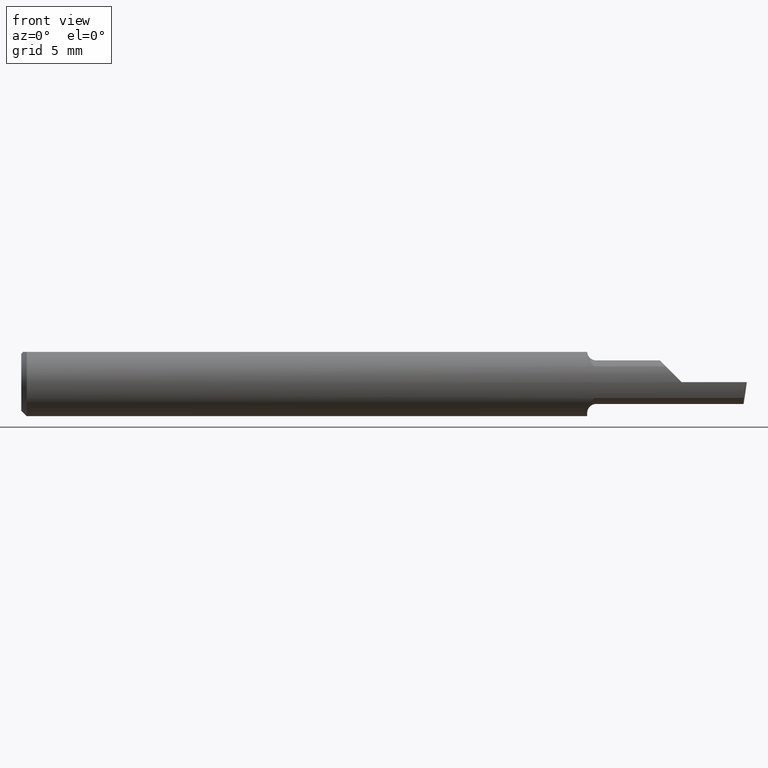
[diagram: clean part render]
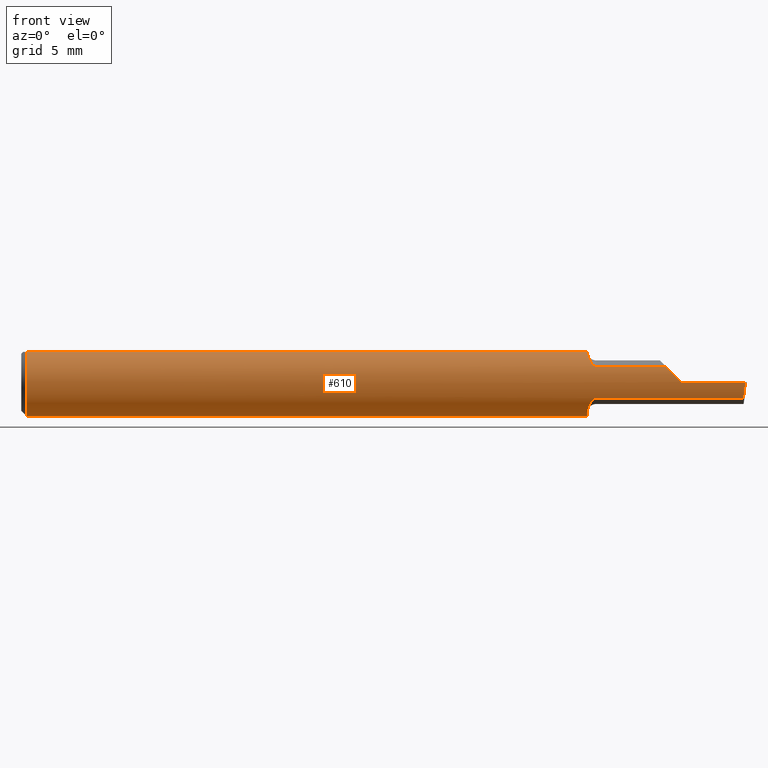
[diagram: same view with one face highlighted and labeled with its STEP entity id]
A machine part, front view. The second image highlights one B-rep face of the part: STEP entity #610.
In plain terms, the highlighted cylindrical surface (edge-blend (fillet) strip) has radius 2.3774 mm, axis along (-1, -0, -0).
Its self-contained STEP definition (entity closure, byte-faithful):
#16 = DIRECTION ( 'NONE',  ( 1.000000000000000000, 0.000000000000000000, 0.000000000000000000 ) ) ;
#21 = VERTEX_POINT ( 'NONE', #445 ) ;
#24 = VECTOR ( 'NONE', #315, 39.37007874015748143 ) ;
#26 = CARTESIAN_POINT ( 'NONE',  ( 1.560142013856806509, -0.04664149215143559984, -0.08134620001855791260 ) ) ;
#32 = CARTESIAN_POINT ( 'NONE',  ( 1.562377486072240140, -0.06025764937183669678, -0.07183713876074279692 ) ) ;
#38 = CARTESIAN_POINT ( 'NONE',  ( 1.563736053593592468, -0.06460630286910790110, 0.06793434242190561634 ) ) ;
#39 = CARTESIAN_POINT ( 'NONE',  ( 1.991291236644940232, -0.08283076923076923559, -0.04358926093247112582 ) ) ;
#43 = CARTESIAN_POINT ( 'NONE',  ( 1.563661553799954085, -0.06439886202495088974, -0.06813094799378993649 ) ) ;
#44 = CIRCLE ( 'NONE', #1172, 0.09360000000000001652 ) ;
#53 = CARTESIAN_POINT ( 'NONE',  ( 1.560039148586933377, -0.04209513035969836975, 0.08360000000000000764 ) ) ;
#54 = VERTEX_POINT ( 'NONE', #964 ) ;
#55 = CARTESIAN_POINT ( 'NONE',  ( 2.000000000000000000, 0.000000000000000000, 0.000000000000000000 ) ) ;
#58 = EDGE_CURVE ( 'NONE', #331, #84, #627, .T. ) ;
#70 = EDGE_CURVE ( 'NONE', #707, #532, #1121, .T. ) ;
#76 = CARTESIAN_POINT ( 'NONE',  ( 0.01499999999999997689, 0.000000000000000000, -0.09360000000000001652 ) ) ;
#83 = CARTESIAN_POINT ( 'NONE',  ( 2.000000000000000000, -0.04209513035969836975, 0.08360000000000000764 ) ) ;
#84 = VERTEX_POINT ( 'NONE', #952 ) ;
#87 = EDGE_CURVE ( 'NONE', #84, #797, #629, .T. ) ;
#89 = ORIENTED_EDGE ( 'NONE', *, *, #642, .T. ) ;
#90 = CARTESIAN_POINT ( 'NONE',  ( 1.560000000000000053, -0.03926105769230769926, -0.08496781360539583383 ) ) ;
#98 = CARTESIAN_POINT ( 'NONE',  ( 1.702500000000000124, -0.08283076923076923559, -0.04358926093247113970 ) ) ;
#111 = VECTOR ( 'NONE', #904, 39.37007874015748143 ) ;
#114 = ORIENTED_EDGE ( 'NONE', *, *, #87, .T. ) ;
#117 = CARTESIAN_POINT ( 'NONE',  ( 1.820000000000000062, -0.09359807690332104524, 0.0005999999999997234759 ) ) ;
#127 = CARTESIAN_POINT ( 'NONE',  ( 1.567102498006617939, -0.07167697195384635511, -0.06042723885938106054 ) ) ;
#139 = CIRCLE ( 'NONE', #884, 0.09360000000000001652 ) ;
#171 = DIRECTION ( 'NONE',  ( -1.000000000000000000, -0.000000000000000000, -0.000000000000000000 ) ) ;
#173 = AXIS2_PLACEMENT_3D ( 'NONE', #204, #469, #645 ) ;
#196 = CARTESIAN_POINT ( 'NONE',  ( 1.777010739067528267, -0.08283076923076923559, 0.04358926093247115358 ) ) ;
#204 = CARTESIAN_POINT ( 'NONE',  ( 0.01499999999999997689, 0.000000000000000000, 0.000000000000000000 ) ) ;
#209 = CARTESIAN_POINT ( 'NONE',  ( 1.567214892725881770, -0.07186207663014752833, 0.06020706929517852246 ) ) ;
#220 = CARTESIAN_POINT ( 'NONE',  ( 1.582125449801165873, -0.08283076923076916620, -0.04358926093247128541 ) ) ;
#222 = DIRECTION ( 'NONE',  ( 0.000000000000000000, 0.000000000000000000, -1.000000000000000000 ) ) ;
#225 = CARTESIAN_POINT ( 'NONE',  ( 1.582150197656746249, -0.08283076923076920783, 0.04358926093247113970 ) ) ;
#227 = AXIS2_PLACEMENT_3D ( 'NONE', #871, #395, #222 ) ;
#229 = DIRECTION ( 'NONE',  ( 0.000000000000000000, 0.000000000000000000, -1.000000000000000000 ) ) ;
#236 = ORIENTED_EDGE ( 'NONE', *, *, #864, .T. ) ;
#254 = VECTOR ( 'NONE', #16, 39.37007874015748143 ) ;
#261 = CIRCLE ( 'NONE', #227, 0.09360000000000001652 ) ;
#275 =( BOUNDED_CURVE ( )  B_SPLINE_CURVE ( 3, ( #39, #947, #290, #954 ),
 .UNSPECIFIED., .F., .T. ) 
 B_SPLINE_CURVE_WITH_KNOTS ( ( 4, 4 ),
 ( 0.8747232269835559793, 1.359145557743775212 ),
 .UNSPECIFIED. ) 
 CURVE ( )  GEOMETRIC_REPRESENTATION_ITEM ( )  RATIONAL_B_SPLINE_CURVE ( ( 1.000000000000000000, 0.9805400006031641524, 0.9805400006031641524, 1.000000000000000000 ) ) 
 REPRESENTATION_ITEM ( '' )  );
#281 = DIRECTION ( 'NONE',  ( 1.000000000000000000, 0.000000000000000000, 0.000000000000000000 ) ) ;
#284 = VERTEX_POINT ( 'NONE', #76 ) ;
#288 = LINE ( 'NONE', #98, #111 ) ;
#290 = CARTESIAN_POINT ( 'NONE',  ( 1.994485063052651386, -0.09359999999999997489, -0.01526366036866348523 ) ) ;
#295 = CARTESIAN_POINT ( 'NONE',  ( 1.560000000000000053, -0.04004803488789287352, -0.08460417523732044476 ) ) ;
#296 = CARTESIAN_POINT ( 'NONE',  ( 1.584999999999999964, -0.08283076923076923559, 0.04358926093247113970 ) ) ;
#297 = EDGE_LOOP ( 'NONE', ( #900, #831, #776, #536, #89, #523, #986, #236, #739, #1159, #1062, #1043, #992, #114 ) ) ;
#302 = CARTESIAN_POINT ( 'NONE',  ( 1.562477289815177306, -0.06060982146914534879, 0.07153573124103555780 ) ) ;
#303 = CARTESIAN_POINT ( 'NONE',  ( 1.804942563038452352, -0.09350155288834309519, 0.01565743696154713732 ) ) ;
#310 = CARTESIAN_POINT ( 'NONE',  ( 1.575391857495286985, -0.08017266721273609564, -0.04834262406831377201 ) ) ;
#315 = DIRECTION ( 'NONE',  ( -1.000000000000000000, -0.000000000000000000, -0.000000000000000000 ) ) ;
#322 = CYLINDRICAL_SURFACE ( 'NONE', #915, 0.09360000000000001652 ) ;
#331 = VERTEX_POINT ( 'NONE', #90 ) ;
#332 = LINE ( 'NONE', #83, #974 ) ;
#364 = CIRCLE ( 'NONE', #173, 0.09360000000000001652 ) ;
#369 = CARTESIAN_POINT ( 'NONE',  ( 1.560008895707774235, -0.04082764346252551468, -0.08423067673484113671 ) ) ;
#376 = CARTESIAN_POINT ( 'NONE',  ( 1.569245964766196932, -0.07491303877601933336, -0.05632320250699807823 ) ) ;
#377 = CARTESIAN_POINT ( 'NONE',  ( 1.790336003083979000, -0.08984312002264578656, 0.03026399691602062181 ) ) ;
#389 = CARTESIAN_POINT ( 'NONE',  ( 1.560039148586933377, -0.04209513035969836975, 0.08360000000000000764 ) ) ;
#395 = DIRECTION ( 'NONE',  ( 1.000000000000000000, -0.000000000000000000, -0.000000000000000000 ) ) ;
#409 = FACE_OUTER_BOUND ( 'NONE', #297, .T. ) ;
#418 = EDGE_CURVE ( 'NONE', #555, #284, #364, .T. ) ;
#427 =( BOUNDED_CURVE ( )  B_SPLINE_CURVE ( 3, ( #507, #303, #377, #650 ),
 .UNSPECIFIED., .F., .F. ) 
 B_SPLINE_CURVE_WITH_KNOTS ( ( 4, 4 ),
 ( 4.718799280696809539, 5.196811311144909240 ),
 .UNSPECIFIED. ) 
 CURVE ( )  GEOMETRIC_REPRESENTATION_ITEM ( )  RATIONAL_B_SPLINE_CURVE ( ( 1.000000000000000000, 0.9810491785075265980, 0.9810491785075265980, 1.000000000000000000 ) ) 
 REPRESENTATION_ITEM ( '' )  );
#435 = VECTOR ( 'NONE', #1083, 39.37007874015748143 ) ;
#445 = CARTESIAN_POINT ( 'NONE',  ( 1.996359204888788375, -0.09360000000000003040, -1.280553747030123384E-17 ) ) ;
#469 = DIRECTION ( 'NONE',  ( 1.000000000000000000, -0.000000000000000000, -0.000000000000000000 ) ) ;
#472 = CARTESIAN_POINT ( 'NONE',  ( 1.560026580150250863, -0.04160000000000011605, -0.08384748058230487300 ) ) ;
#498 = VERTEX_POINT ( 'NONE', #117 ) ;
#507 = CARTESIAN_POINT ( 'NONE',  ( 1.820000000000000062, -0.09359807690332104524, 0.0005999999999997234759 ) ) ;
#511 = LINE ( 'NONE', #887, #435 ) ;
#523 = ORIENTED_EDGE ( 'NONE', *, *, #934, .F. ) ;
#532 = VERTEX_POINT ( 'NONE', #389 ) ;
#536 = ORIENTED_EDGE ( 'NONE', *, *, #549, .F. ) ;
#549 = EDGE_CURVE ( 'NONE', #498, #643, #139, .T. ) ;
#555 = VERTEX_POINT ( 'NONE', #877 ) ;
#556 = DIRECTION ( 'NONE',  ( 0.000000000000000000, 0.000000000000000000, -1.000000000000000000 ) ) ;
#572 = CARTESIAN_POINT ( 'NONE',  ( 1.584999999999999964, -0.08283076923076923559, -0.04358926093247113970 ) ) ;
#579 = CARTESIAN_POINT ( 'NONE',  ( 1.560178547211975353, -0.04709507836289907740, 0.08108237484465974365 ) ) ;
#590 = DIRECTION ( 'NONE',  ( -1.000000000000000000, -0.000000000000000000, -0.000000000000000000 ) ) ;
#593 = CARTESIAN_POINT ( 'NONE',  ( 1.575459910688778997, -0.08021373321158492553, 0.04827370452423246361 ) ) ;
#608 = EDGE_CURVE ( 'NONE', #284, #659, #261, .T. ) ;
#610 = ADVANCED_FACE ( 'NONE', ( #409 ), #322, .T. ) ;
#622 = EDGE_CURVE ( 'NONE', #21, #643, #1140, .T. ) ;
#627 = B_SPLINE_CURVE_WITH_KNOTS ( 'NONE', 3,
 ( #839, #295, #369, #472 ),
 .UNSPECIFIED., .F., .F.,
 ( 4, 4 ),
 ( 0.000000000000000000, 6.511945750756365111E-05 ),
 .UNSPECIFIED. ) ;
#629 = B_SPLINE_CURVE_WITH_KNOTS ( 'NONE', 3,
 ( #1033, #26, #1130, #32, #43, #127, #376, #656, #310, #752, #220, #572 ),
 .UNSPECIFIED., .F., .F.,
 ( 4, 2, 2, 2, 2, 4 ),
 ( 6.511945750756365111E-05, 0.0004901812236745791990, 0.0009152429898415950045, 0.001340304756008611027, 0.001552835639092118658, 0.001765366522175626507 ),
 .UNSPECIFIED. ) ;
#642 = EDGE_CURVE ( 'NONE', #498, #744, #427, .T. ) ;
#643 = VERTEX_POINT ( 'NONE', #929 ) ;
#645 = DIRECTION ( 'NONE',  ( 0.000000000000000000, 0.000000000000000000, -1.000000000000000000 ) ) ;
#650 = CARTESIAN_POINT ( 'NONE',  ( 1.777010739067528267, -0.08283076923076923559, 0.04358926093247115358 ) ) ;
#656 = CARTESIAN_POINT ( 'NONE',  ( 1.573701538880792228, -0.07896087784546762522, -0.05031864862752456063 ) ) ;
#659 = VERTEX_POINT ( 'NONE', #760 ) ;
#663 = LINE ( 'NONE', #726, #254 ) ;
#666 = CARTESIAN_POINT ( 'NONE',  ( 1.991291236644940232, -0.08283076923076923559, -0.04358926093247112582 ) ) ;
#678 = EDGE_CURVE ( 'NONE', #331, #54, #44, .T. ) ;
#683 = CARTESIAN_POINT ( 'NONE',  ( 1.573787800838770456, -0.07902379048613618340, 0.05021793392644404580 ) ) ;
#707 = VERTEX_POINT ( 'NONE', #296 ) ;
#723 = VERTEX_POINT ( 'NONE', #666 ) ;
#726 = CARTESIAN_POINT ( 'NONE',  ( 2.000000000000000000, 0.04209513035969836975, 0.08360000000000000764 ) ) ;
#731 = EDGE_CURVE ( 'NONE', #723, #21, #275, .T. ) ;
#739 = ORIENTED_EDGE ( 'NONE', *, *, #418, .T. ) ;
#744 = VERTEX_POINT ( 'NONE', #196 ) ;
#752 = CARTESIAN_POINT ( 'NONE',  ( 1.579515975024027741, -0.08209254696281824415, -0.04500532860642078581 ) ) ;
#760 = CARTESIAN_POINT ( 'NONE',  ( 0.01499999999999997689, 0.04209513035969836975, 0.08360000000000000764 ) ) ;
#776 = ORIENTED_EDGE ( 'NONE', *, *, #622, .T. ) ;
#777 = CARTESIAN_POINT ( 'NONE',  ( 2.000000000000000000, -0.09360000000000001652, -2.561107494060246767E-17 ) ) ;
#797 = VERTEX_POINT ( 'NONE', #852 ) ;
#821 = EDGE_CURVE ( 'NONE', #659, #54, #663, .T. ) ;
#831 = ORIENTED_EDGE ( 'NONE', *, *, #731, .T. ) ;
#839 = CARTESIAN_POINT ( 'NONE',  ( 1.560000000000000053, -0.03926105769230769926, -0.08496781360539583383 ) ) ;
#852 = CARTESIAN_POINT ( 'NONE',  ( 1.584999999999999964, -0.08283076923076923559, -0.04358926093247113970 ) ) ;
#858 = CARTESIAN_POINT ( 'NONE',  ( 1.579579912137085485, -0.08211261999334849848, 0.04496789056716103683 ) ) ;
#864 = EDGE_CURVE ( 'NONE', #532, #555, #332, .T. ) ;
#865 = DIRECTION ( 'NONE',  ( 1.000000000000000000, -0.000000000000000000, 0.000000000000000000 ) ) ;
#867 = CARTESIAN_POINT ( 'NONE',  ( 1.584999999999999964, -0.08283076923076923559, 0.04358926093247113970 ) ) ;
#871 = CARTESIAN_POINT ( 'NONE',  ( 0.01499999999999997689, 0.000000000000000000, 0.000000000000000000 ) ) ;
#877 = CARTESIAN_POINT ( 'NONE',  ( 0.01499999999997129151, -0.04209513035984148444, 0.08360000000000000764 ) ) ;
#884 = AXIS2_PLACEMENT_3D ( 'NONE', #1149, #865, #229 ) ;
#887 = CARTESIAN_POINT ( 'NONE',  ( 1.702500000000000124, -0.08283076923076923559, 0.04358926093247113970 ) ) ;
#900 = ORIENTED_EDGE ( 'NONE', *, *, #1070, .F. ) ;
#904 = DIRECTION ( 'NONE',  ( -1.000000000000000000, -0.000000000000000000, -0.000000000000000000 ) ) ;
#915 = AXIS2_PLACEMENT_3D ( 'NONE', #55, #590, #966 ) ;
#929 = CARTESIAN_POINT ( 'NONE',  ( 1.820000000000000062, -0.09360000000000001652, -2.561107494060246767E-17 ) ) ;
#934 = EDGE_CURVE ( 'NONE', #707, #744, #511, .T. ) ;
#947 = CARTESIAN_POINT ( 'NONE',  ( 1.992762213656492198, -0.08993901361746037271, -0.03008177450497541774 ) ) ;
#952 = CARTESIAN_POINT ( 'NONE',  ( 1.560026580150250863, -0.04160000000000011605, -0.08384748058230487300 ) ) ;
#954 = CARTESIAN_POINT ( 'NONE',  ( 1.996359204888788375, -0.09360000000000003040, -1.280553747030123384E-17 ) ) ;
#964 = CARTESIAN_POINT ( 'NONE',  ( 1.560000000000000053, 0.04209513035969836975, 0.08360000000000000764 ) ) ;
#966 = DIRECTION ( 'NONE',  ( 0.000000000000000000, 0.000000000000000000, 1.000000000000000000 ) ) ;
#974 = VECTOR ( 'NONE', #171, 39.37007874015748143 ) ;
#986 = ORIENTED_EDGE ( 'NONE', *, *, #70, .T. ) ;
#992 = ORIENTED_EDGE ( 'NONE', *, *, #58, .T. ) ;
#1033 = CARTESIAN_POINT ( 'NONE',  ( 1.560026580150250863, -0.04160000000000011605, -0.08384748058230487300 ) ) ;
#1043 = ORIENTED_EDGE ( 'NONE', *, *, #678, .F. ) ;
#1054 = CARTESIAN_POINT ( 'NONE',  ( 1.560691525765172782, -0.05185995085370528196, 0.07811182240968785051 ) ) ;
#1062 = ORIENTED_EDGE ( 'NONE', *, *, #821, .T. ) ;
#1065 = CARTESIAN_POINT ( 'NONE',  ( 1.560000000000000053, 0.000000000000000000, 0.000000000000000000 ) ) ;
#1070 = EDGE_CURVE ( 'NONE', #723, #797, #288, .T. ) ;
#1083 = DIRECTION ( 'NONE',  ( 1.000000000000000000, 0.000000000000000000, 0.000000000000000000 ) ) ;
#1121 = B_SPLINE_CURVE_WITH_KNOTS ( 'NONE', 3,
 ( #867, #225, #858, #593, #683, #1144, #209, #38, #302, #1054, #579, #53 ),
 .UNSPECIFIED., .F., .F.,
 ( 4, 2, 2, 2, 2, 4 ),
 ( 0.000000000000000000, 0.0002131951421325463001, 0.0004263902842650926003, 0.0008527805685301861763, 0.001279170852795279752, 0.001705561137060373437 ),
 .UNSPECIFIED. ) ;
#1130 = CARTESIAN_POINT ( 'NONE',  ( 1.560623617236403193, -0.05137681723376862075, -0.07843456804290670215 ) ) ;
#1140 = LINE ( 'NONE', #777, #24 ) ;
#1144 = CARTESIAN_POINT ( 'NONE',  ( 1.569365580361787194, -0.07505113405137683880, 0.05613242093613882849 ) ) ;
#1149 = CARTESIAN_POINT ( 'NONE',  ( 1.820000000000000062, 0.000000000000000000, 0.000000000000000000 ) ) ;
#1159 = ORIENTED_EDGE ( 'NONE', *, *, #608, .T. ) ;
#1172 = AXIS2_PLACEMENT_3D ( 'NONE', #1065, #281, #556 ) ;